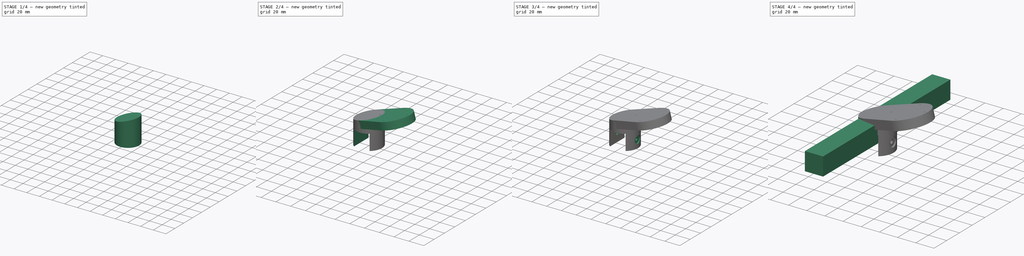
[diagram: build sequence overview — one tinted view per stage of 4, left to right]
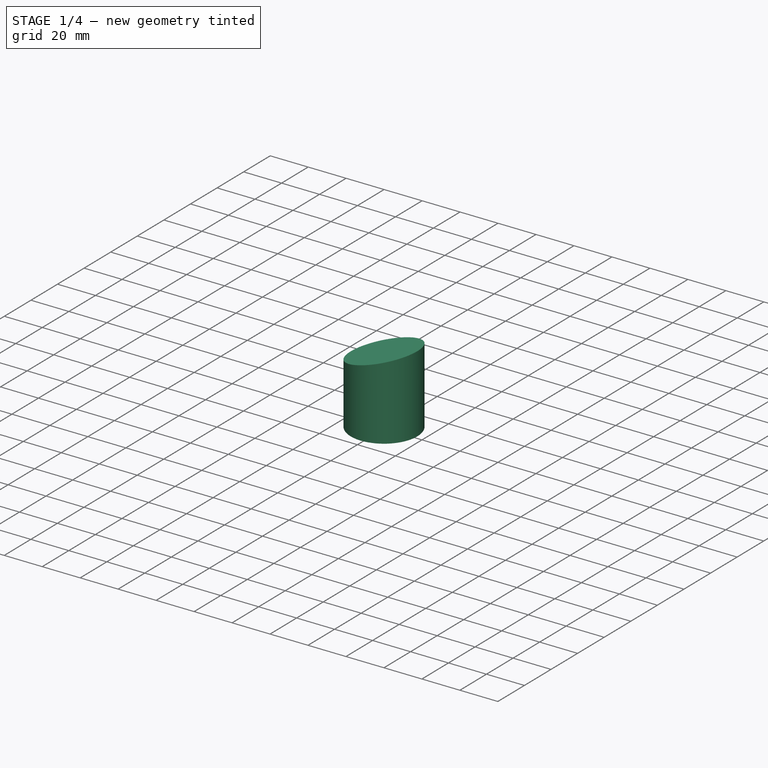
[diagram: stage 1 of 4 — iso view after this stage's code; geometry added in this stage tinted green]
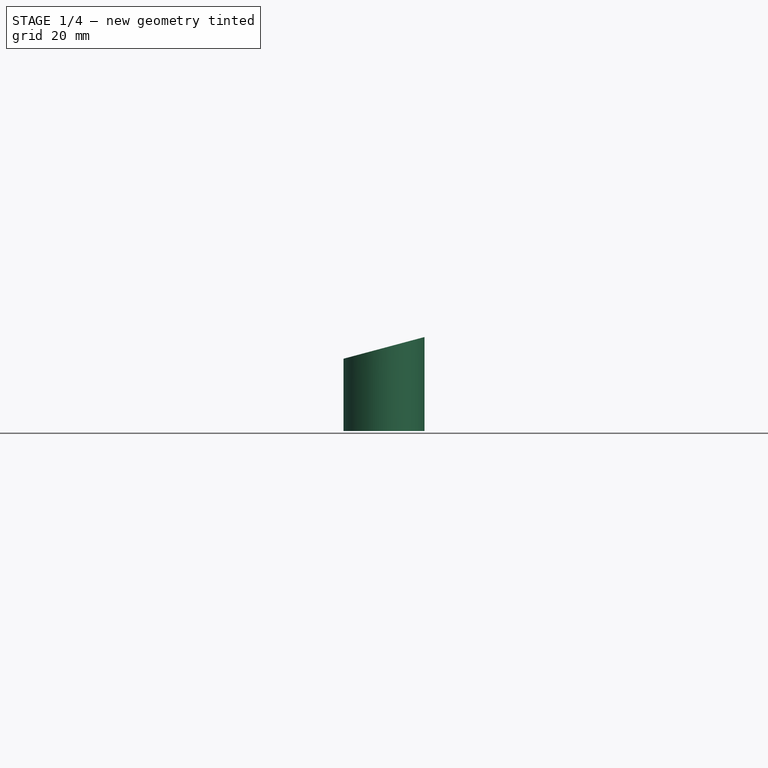
[diagram: stage 1 of 4 — front view after this stage's code; geometry added in this stage tinted green]
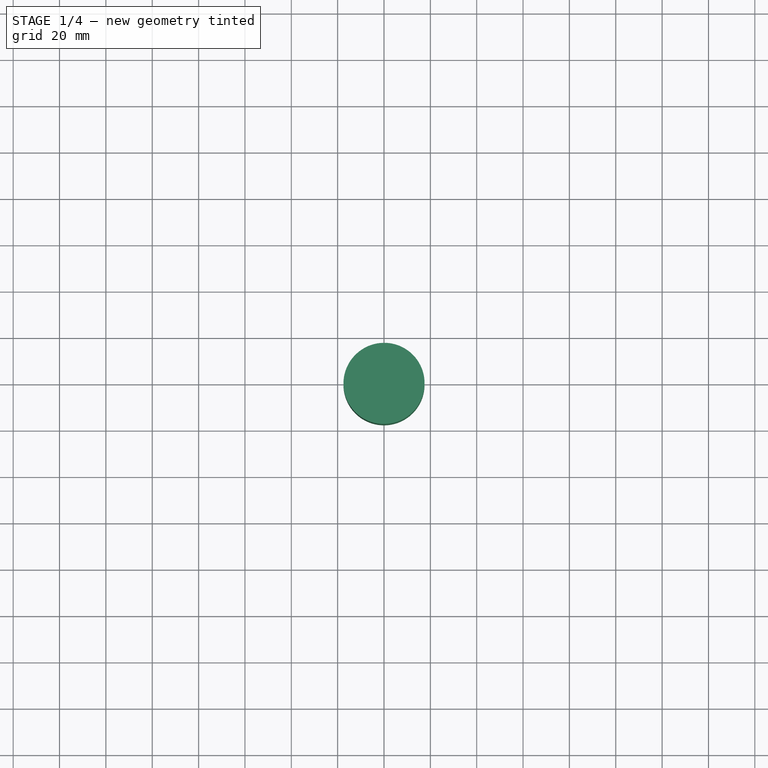
[diagram: stage 1 of 4 — top view after this stage's code; geometry added in this stage tinted green]
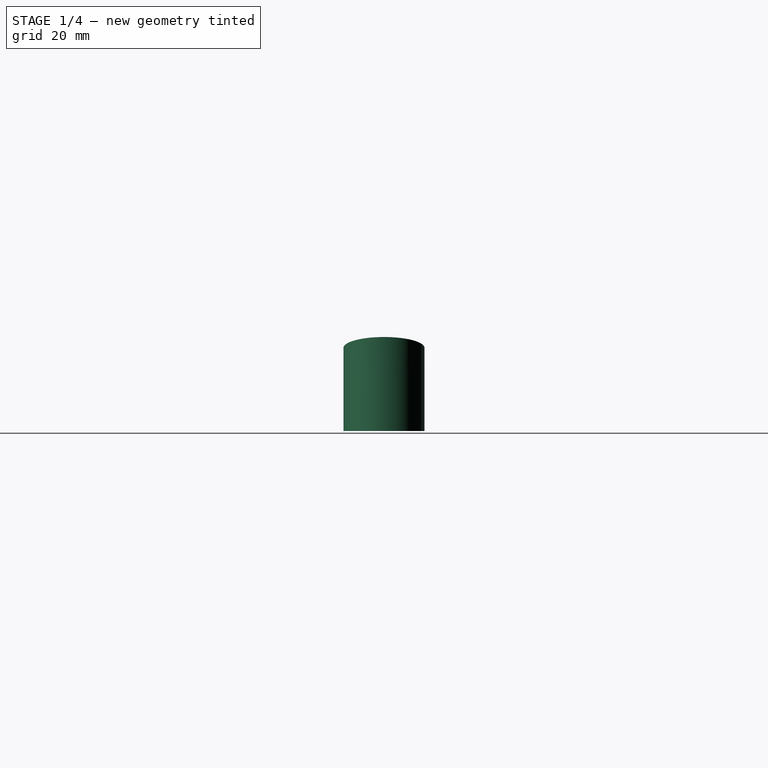
[diagram: stage 1 of 4 — right view after this stage's code; geometry added in this stage tinted green]
FCSTD DOCUMENT  (FreeCAD 0.21R33771 (Git))
Label: keyboard_chair_attachment_rev2
License: All rights reserved
LicenseURL: https://en.wikipedia.org/wiki/All_rights_reserved
objects: Sketcher::SketchObject×10, PartDesign::Plane×10, PartDesign::CoordinateSystem×7, PartDesign::Pocket×6, PartDesign::Pad×4, App::DocumentObjectGroup×3, App::Part×3, PartDesign::Body×2, App::Link×2, App::FeaturePython×1
note: 49 computed .brp shape members not serialized (recipe doc carries the construction recipe); baked Part::Feature solids carry a one-line shape summary decoded from their .brp

FEATURE [PartDesign::Body] Extruded_Bar_Body  label="Extruded Bar Body"
  Group = -> [Sketch,Pad]
  Origin = -> Origin002
  Tip = -> Pad
FEATURE [PartDesign::CoordinateSystem] LCS_003
  AttacherType = Attacher::AttachEngine3D
  MapMode = 2
  Support = -> [X_Axis004]
FEATURE [Sketcher::SketchObject] Sketch005
  FullyConstrained = true
  MapMode = 5
  Placement = pos=(0,0,0) rot=(1,0,0;1.5708rad)
  Support = -> [XZ_Plane004]
  expr: .Constraints.height = Variables.extruded_bar_height + 1
  expr: .Constraints.width = Variables.extruded_bar_width + 1
  sketch-geometry (5):
    g0: LineSegment StartX=-10.5 StartY=-22.5 StartZ=0 EndX=-10.5 EndY=-1.5 EndZ=0
    g1: LineSegment StartX=-10.5 StartY=-1.5 StartZ=0 EndX=10.5 EndY=-1.5 EndZ=0
    g2: LineSegment StartX=10.5 StartY=-1.5 StartZ=0 EndX=10.5 EndY=-22.5 EndZ=0
    g3: LineSegment StartX=10.5 StartY=-22.5 StartZ=0 EndX=-10.5 EndY=-22.5 EndZ=0
    g4: GeomPoint X=0 Y=-12 Z=0
  constraints (13):
    c: Coincident(g0,g1)
    c: Coincident(g1,g2)
    c: Coincident(g2,g3)
    c: Coincident(g3,g0)
    c: Horizontal(g1)
    c: Horizontal(g3)
    c: Vertical(g0)
    c: Vertical(g2)
    c: Symmetric(g1,g0,g4)
    c: PointOnObject(g4,g-2)
    c: DistanceX(g1,g1) = 21  'width'
    c: DistanceY(g2,g2) = 21  'height'
    c: DistanceY(g4,g-1) = 12  'offset'
FEATURE [PartDesign::Plane] DatumPlane004  label="Keyboard Mount Bar Side Right"
  AttachmentOffset = pos=(0,0,10.5) rot=(0,0,1;0rad)
  Length = 60.1645
  MapMode = 5
  Placement = pos=(10.5,-2.3e-15,2.3e-15) rot=(0.57735,0.57735,0.57735;2.0944rad)
  ResizeMode = 0
  Support = -> [YZ_Plane004]
  Width = 61.8232
  expr: .AttachmentOffset.Base.z = Sketch005.Constraints.width / 2
FEATURE [Sketcher::SketchObject] Sketch006
  FullyConstrained = true
  MapMode = 5
  Placement = pos=(10.5,-2.3e-15,2.3e-15) rot=(0.57735,0.57735,0.57735;2.0944rad)
  Support = -> [DatumPlane004]
  expr: .Constraints.offset = Sketch005.Constraints.offset
  sketch-geometry (1):
    g0: Circle CenterX=0 CenterY=-12 CenterZ=0 NormalX=0 NormalY=0 NormalZ=1 AngleXU=0 Radius=2
  constraints (3):
    c: PointOnObject(g0,g-2)
    c: DistanceY(g0,g-1) = 12  'offset'
    c: Diameter(g0) = 4  'hole_diam'
FEATURE [PartDesign::Plane] DatumPlane005  label="Keyboard Mount Bar Mount Screw Head Right"
  AttachmentOffset = pos=(0,0,5) rot=(0,0,1;0rad)
  Length = 60.1645
  MapMode = 5
  Placement = pos=(15.5,-2.9e-15,2.9e-15) rot=(0.57735,0.57735,0.57735;2.0944rad)
  ResizeMode = 0
  Support = -> [DatumPlane004]
  Width = 61.8232
FEATURE [Sketcher::SketchObject] Sketch007
  FullyConstrained = true
  MapMode = 5
  Placement = pos=(15.5,-2.9e-15,2.9e-15) rot=(0.57735,0.57735,0.57735;2.0944rad)
  Support = -> [DatumPlane005]
  expr: .Constraints.offset = Sketch005.Constraints.offset
  sketch-geometry (1):
    g0: Circle CenterX=0 CenterY=-12 CenterZ=0 NormalX=0 NormalY=0 NormalZ=1 AngleXU=0 Radius=5
  constraints (3):
    c: PointOnObject(g0,g-2)
    c: DistanceY(g0,g-1) = 12  'offset'
    c: Diameter(g0) = 10  'hole_diam'
FEATURE [PartDesign::CoordinateSystem] Local_CS  label="Keyboard Mount Body Bar"
  AttacherType = Attacher::AttachEngine3D
  AttachmentOffset = pos=(0,0,-12) rot=(0,0,1;0rad)
  MapMode = 5
  Placement = pos=(0,0,-12) rot=(0,0,1;0rad)
  Support = -> [LCS_003]
  expr: .AttachmentOffset.Base.z = -Sketch005.Constraints.offset
FEATURE [PartDesign::CoordinateSystem] Keyboard_Mount_Bar  label="Keyboard Mount Bar"
  AttacherType = Attacher::AttachEngine3D
  MapMode = 5
  Placement = pos=(0,0,-12) rot=(0,0,1;0rad)
  Support = -> [Local_CS]
FEATURE [PartDesign::CoordinateSystem] LCS_1  label="Extruded Bar Keyboard"
  AttacherType = Attacher::AttachEngine3D
  AttachmentOffset = pos=(0,80,0) rot=(0,0,1;0rad)
  MapMode = 5
  Placement = pos=(0,80,0) rot=(0,0,1;0rad)
  Support = -> [LCS_0]
FEATURE [App::Part] Extruded_Bar  label="Extruded Bar"
  Group = -> [LCS_0,Extruded_Bar_Body,LCS_1]
  Origin = -> Origin001
FEATURE [App::Link] Extruded_Bar_Ass  label="Extruded Bar Ass"
  AttachedBy = #LCS_0
  AttachedTo = Parent Assembly#LCS_Origin
  LinkedObject = -> Extruded_Bar
  SolverId = Asm4EE
  expr: Placement = LCS_Origin.Placement * AttachmentOffset * LCS_0.Placement ^ -1
FEATURE [PartDesign::Plane] DatumPlane006  label="Keyboard Mount Bar Side Left"
  AttachmentOffset = pos=(0,0,-10.5) rot=(0,0,1;0rad)
  Length = 60.1645
  MapMode = 5
  Placement = pos=(-10.5,2.3e-15,-2.3e-15) rot=(0.57735,0.57735,0.57735;2.0944rad)
  ResizeMode = 0
  Support = -> [YZ_Plane004]
  Width = 61.8232
  expr: .AttachmentOffset.Base.z = -Sketch005.Constraints.width / 2
FEATURE [PartDesign::Plane] DatumPlane007  label="Keyboard Mount Bar Mount Screw Head Left"
  AttachmentOffset = pos=(0,0,-5) rot=(0,0,1;0rad)
  Length = 60.1645
  MapMode = 5
  Placement = pos=(-15.5,2.9e-15,-2.9e-15) rot=(0.57735,0.57735,0.57735;2.0944rad)
  ResizeMode = 0
  Support = -> [DatumPlane006]
  Width = 61.8232
FEATURE [Sketcher::SketchObject] Sketch008
  FullyConstrained = true
  MapMode = 5
  Placement = pos=(-10.5,2.3e-15,-2.3e-15) rot=(0.57735,0.57735,0.57735;2.0944rad)
  Support = -> [DatumPlane006]
  expr: Constraints[1] = Sketch006.Constraints.hole_diam
  expr: Constraints[2] = Sketch006.Constraints.offset
  sketch-geometry (1):
    g0: Circle CenterX=0 CenterY=-12 CenterZ=0 NormalX=0 NormalY=0 NormalZ=1 AngleXU=0 Radius=2
  constraints (3):
    c: PointOnObject(g0,g-2)
    c: Diameter(g0) = 4
    c: DistanceY(g0,g-1) = 12
FEATURE [Sketcher::SketchObject] Sketch009
  FullyConstrained = true
  MapMode = 5
  Placement = pos=(-15.5,2.9e-15,-2.9e-15) rot=(0.57735,0.57735,0.57735;2.0944rad)
  Support = -> [DatumPlane007]
  expr: Constraints[1] = Sketch007.Constraints.offset
  expr: Constraints[2] = Sketch007.Constraints.hole_diam
  sketch-geometry (1):
    g0: Circle CenterX=0 CenterY=-12 CenterZ=0 NormalX=0 NormalY=0 NormalZ=1 AngleXU=0 Radius=5
  constraints (3):
    c: PointOnObject(g0,g-2)
    c: DistanceY(g0,g-1) = 12
    c: Diameter(g0) = 10
FEATURE [PartDesign::Plane] DatumPlane010  label="Keyboard Mount Bar Mount Top"
  Length = 94.4443
  MapMode = 5
  ResizeMode = 0
  Support = -> [XY_Plane004]
  Width = 62.78
FEATURE [PartDesign::Plane] DatumPlane011  label="Keyboard Mount Bar Mount Bottom"
  AttachmentOffset = pos=(0,0,-22.5) rot=(0,0,1;0rad)
  Length = 94.4443
  MapMode = 5
  Placement = pos=(0,0,-22.5) rot=(0,0,1;0rad)
  ResizeMode = 0
  Support = -> [DatumPlane010]
  Width = 62.78
  expr: .AttachmentOffset.Base.z = -<<Sketch005>>.Constraints.offset - Sketch005.Constraints.height / 2
FEATURE [Sketcher::SketchObject] Sketch011
  FullyConstrained = true
  MapMode = 5
  Support = -> [DatumPlane010]
  sketch-geometry (1):
    g0: Circle CenterX=0 CenterY=0 CenterZ=0 NormalX=0 NormalY=0 NormalZ=1 AngleXU=0 Radius=17.5
  constraints (2):
    c: Coincident(g0,g-1)
    c: Diameter(g0) = 35  'diam'
FEATURE [App::Link] Keyboard_Mount_Ass  label="Keyboard Mount Ass"
  AttachedBy = #Keyboard_Mount_Bar
  AttachedTo = Extruded_Bar_Ass#LCS_1
  LinkPlacement = pos=(0,80,12) rot=(0,0,1;0rad)
  LinkedObject = -> Keyboard_Mount
  Placement = pos=(0,80,12) rot=(0,0,1;0rad)
  SolverId = Asm4EE
  expr: Placement = Extruded_Bar_Ass.Placement * LCS_1.Placement * AttachmentOffset * Keyboard_Mount_Bar.Placement ^ -1
FEATURE [App::Part] Assembly
  AssemblyType = Part::Link
  Group = -> [LCS_Origin,Constraints,Variables,Configurations,Extruded_Bar_Ass,Keyboard_Mount_Ass]
  Origin = -> Origin
  Type = Assembly
FEATURE [PartDesign::CoordinateSystem] Local_CS001  label="Keyboard Mount Edge Position"
  AttacherType = Attacher::AttachEngine3D
  AttachmentOffset = pos=(-20,0,8) rot=(0,0,1;0rad)
  MapMode = 5
  Placement = pos=(-20,0,8) rot=(0,0,1;0rad)
  Support = -> [XY_Plane004]
FEATURE [PartDesign::Plane] DatumPlane  label="Keyboard Mount Tenting Puck Support Top Angle"
  AttachmentOffset = pos=(0,0,0) rot=(0,-1,0;0.261799rad)
  Length = 105.835
  MapMode = 5
  Placement = pos=(-20,0,8) rot=(0,-1,0;0.261799rad)
  ResizeMode = 0
  Support = -> [Local_CS001]
  Width = 63.5832
FEATURE [PartDesign::Plane] DatumPlane012  label="Keyboard Mount Tenting Puck Support Top"
  AttachmentOffset = pos=(55,0,0) rot=(0,0,1;0rad)
  Length = 105.835
  MapMode = 5
  Placement = pos=(33.1259,0,22.235) rot=(0,-1,0;0.261799rad)
  ResizeMode = 0
  Support = -> [DatumPlane]
  Width = 63.5832
FEATURE [Sketcher::SketchObject] Sketch012
  FullyConstrained = true
  MapMode = 5
  Placement = pos=(33.1259,0,22.235) rot=(0,-1,0;0.261799rad)
  Support = -> [DatumPlane012]
  sketch-geometry (5):
    g0: Circle CenterX=0 CenterY=0 CenterZ=0 NormalX=0 NormalY=0 NormalZ=1 AngleXU=0 Radius=19
    g1: Circle CenterX=0 CenterY=19 CenterZ=0 NormalX=0 NormalY=0 NormalZ=1 AngleXU=0 Radius=0.85
    g2: Circle CenterX=-19 CenterY=0 CenterZ=0 NormalX=0 NormalY=0 NormalZ=1 AngleXU=0 Radius=0.85
    g3: Circle CenterX=19 CenterY=0 CenterZ=0 NormalX=0 NormalY=0 NormalZ=1 AngleXU=0 Radius=0.85
    g4: Circle CenterX=0 CenterY=-19 CenterZ=0 NormalX=0 NormalY=0 NormalZ=1 AngleXU=0 Radius=0.85
  constraints (14):
    c: Coincident(g0,g-1)
    c: PointOnObject(g1,g0)
    c: PointOnObject(g2,g0)
    c: PointOnObject(g3,g0)
    c: PointOnObject(g4,g0)
    c: PointOnObject(g4,g-2)
    c: Tangent(g1,g-2) = -1.5708
    c: PointOnObject(g2,g-1)
    c: PointOnObject(g3,g-1)
    c: Equal(g1,g2)
    c: Equal(g2,g3)
    c: Equal(g3,g4)
    c: Diameter(g1) = 1.7
    c: Diameter(g0) = 38  'hole_centres'
FEATURE [PartDesign::Plane] DatumPlane013  label="Keyboard Mount Tenting Puck Support Bottom"
  AttachmentOffset = pos=(0,0,-10) rot=(0,0,1;0rad)
  Length = 105.835
  MapMode = 5
  Placement = pos=(35.7141,0,12.5758) rot=(0,-1,0;0.261799rad)
  ResizeMode = 0
  Support = -> [DatumPlane012]
  Width = 63.5832
FEATURE [Sketcher::SketchObject] Sketch013
  FullyConstrained = true
  MapMode = 5
  Support = -> [DatumPlane010]
  expr: Constraints[1] = Sketch011.Constraints.diam
  sketch-geometry (1):
    g0: Circle CenterX=0 CenterY=0 CenterZ=0 NormalX=0 NormalY=0 NormalZ=1 AngleXU=0 Radius=17.5
  constraints (2):
    c: Coincident(g0,g-1)
    c: Diameter(g0) = 35
FEATURE [PartDesign::Pad] Pad003  label="Keyboard Mount Bar Padding"
  Direction = (0,0,1)
  Length = 10
  Length2 = 10
  Profile = -> Sketch013
  ReferenceAxis = -> Sketch013 [N_Axis]
  Type = 3
  UpToFace = -> DatumPlane012 [Plane]
FEATURE [PartDesign::Pad] Pad002  label="Keyboard Mount Bar Mount"
  BaseFeature = -> Pad003
  Direction = (0,0,1)
  Length = 10
  Length2 = 10
  Profile = -> Sketch011
  ReferenceAxis = -> Sketch011 [N_Axis]
  Type = 3
  UpToFace = -> DatumPlane011 [Plane]
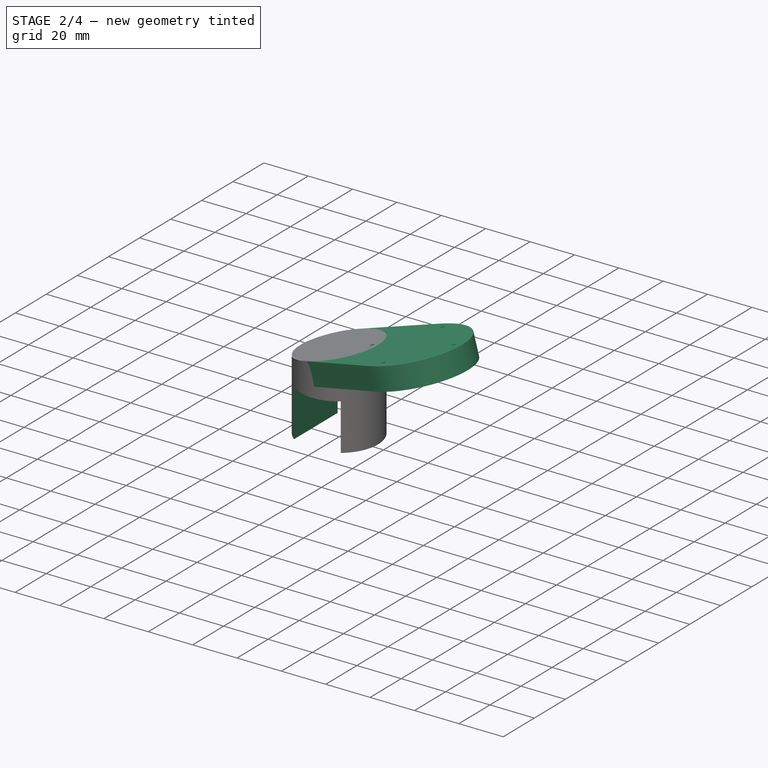
[diagram: stage 2 of 4 — iso view after this stage's code; geometry added in this stage tinted green]
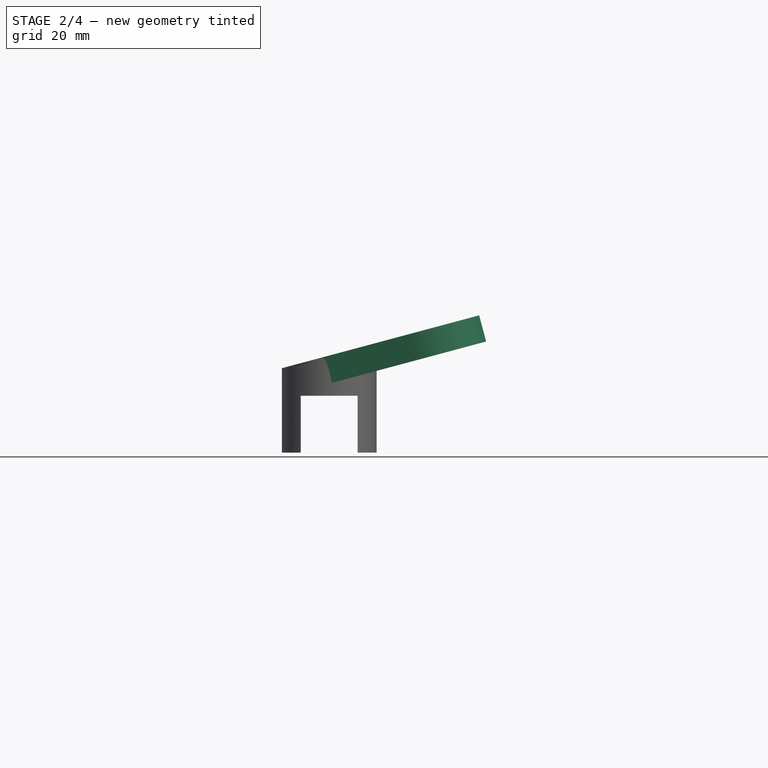
[diagram: stage 2 of 4 — front view after this stage's code; geometry added in this stage tinted green]
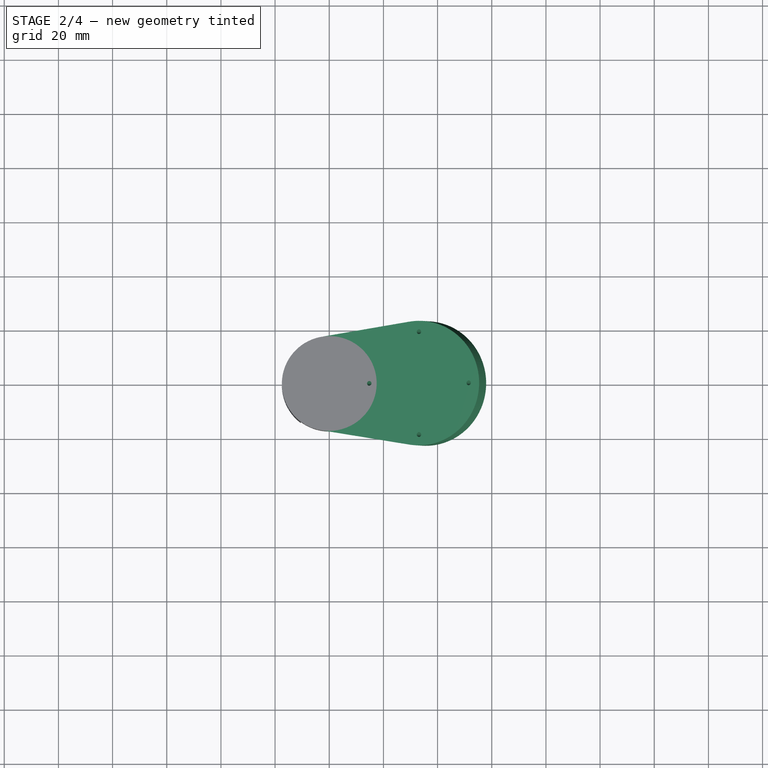
[diagram: stage 2 of 4 — top view after this stage's code; geometry added in this stage tinted green]
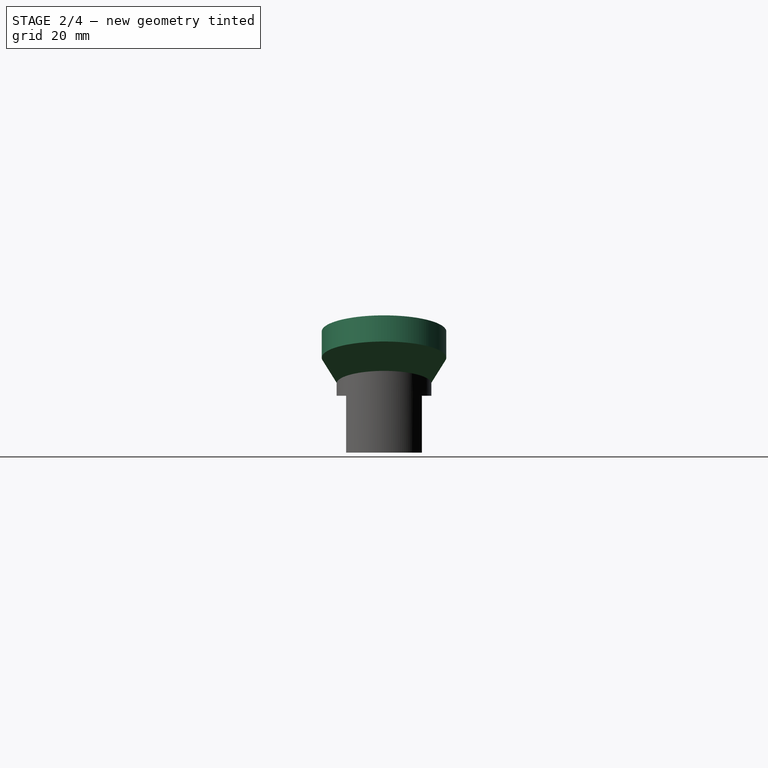
[diagram: stage 2 of 4 — right view after this stage's code; geometry added in this stage tinted green]
FEATURE [Sketcher::SketchObject] Sketch014
  ExternalGeometry = -> [Pad002]
  FullyConstrained = true
  MapMode = 5
  Placement = pos=(33.1259,0,22.235) rot=(0,-1,0;0.261799rad)
  Support = -> [DatumPlane012]
  sketch-geometry (6):
    g0: GeomPoint X=-52.4118 Y=0 Z=0
    g1: Circle CenterX=0 CenterY=0 CenterZ=0 NormalX=0 NormalY=0 NormalZ=1 AngleXU=0 Radius=23
    g2: LineSegment StartX=-37.291 StartY=17.259 StartZ=0 EndX=-3.67787 EndY=22.704 EndZ=0
    g3: LineSegment StartX=-37.291 StartY=-17.259 StartZ=0 EndX=-3.67787 EndY=-22.704 EndZ=0
    g4: ArcOfCircle CenterX=1.8e-15 CenterY=1e-15 CenterZ=0 NormalX=0 NormalY=0 NormalZ=1 AngleXU=0 Radius=23 StartAngle=4.55179 EndAngle=8.01458
    g5: ArcOfCircle CenterX=-35.0017 CenterY=3.2e-15 CenterZ=0 NormalX=0 NormalY=0 NormalZ=1 AngleXU=0 Radius=17.4102 StartAngle=1.70267 EndAngle=4.58051
  constraints (14):
    c: Coincident(g1,g-1)
    c: Diameter(g1) = 46  'diam'
    c: Coincident(g4,g2)
    c: Coincident(g4,g3)
    c: Tangent(g4,g1)
    c: Coincident(g5,g2)
    c: Coincident(g5,g3)
    c: PointOnObject(g0,g5)
    c: Tangent(g2,g1) = 1.5708
    c: Tangent(g3,g1) = -1.5708
    c: PointOnObject(g0,g-1)
    c: Tangent(g2,g-3) = 1.5708
    c: Tangent(g3,g-3) = -1.5708
    c: PointOnObject(g0,g-3)
FEATURE [PartDesign::Pad] Pad004  label="Keyboard Mount Tenting Puck Support"
  BaseFeature = -> Pad002
  Direction = (-0.258819,0,0.965926)
  Length = 10
  Length2 = 10
  Profile = -> Sketch014
  ReferenceAxis = -> Sketch014 [N_Axis]
  Type = 3
  UpToFace = -> DatumPlane013
FEATURE [PartDesign::Plane] DatumPlane014  label="Keyboard Mount Tenting Puck Hole Depth"
  AttachmentOffset = pos=(0,0,-8) rot=(0,0,1;0rad)
  Length = 105.835
  MapMode = 5
  Placement = pos=(35.1965,0,14.5076) rot=(0,-1,0;0.261799rad)
  ResizeMode = 0
  Support = -> [DatumPlane012]
  Width = 63.5832
FEATURE [PartDesign::Pocket] Pocket  label="Keyboard Mount Tenting Puck Holes"
  BaseFeature = -> Pad004
  Direction = (0.258819,0,-0.965926)
  Length = 0
  Length2 = 5
  Profile = -> Sketch012
  ReferenceAxis = -> Sketch012 [N_Axis]
  Type = 3
  UpToFace = -> DatumPlane014 [Plane]
FEATURE [PartDesign::Pocket] Pocket001  label="Keyboard Mount Bar Cutout"
  BaseFeature = -> Pocket
  Direction = (0,1,2e-16)
  Length = 5
  Length2 = 5
  Midplane = true
  Profile = -> Sketch005
  ReferenceAxis = -> Sketch005 [N_Axis]
  Type = 1
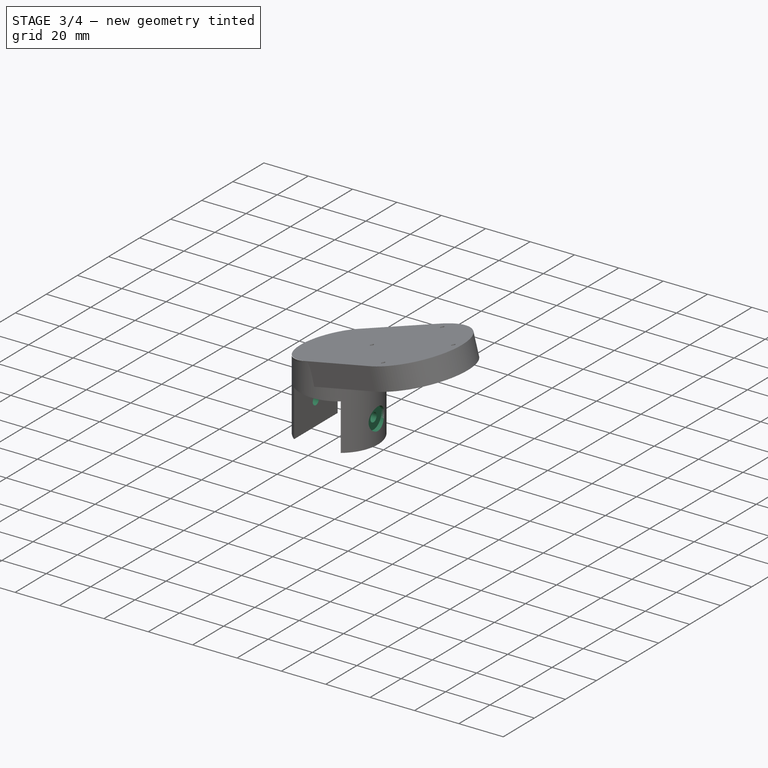
[diagram: stage 3 of 4 — iso view after this stage's code; geometry added in this stage tinted green]
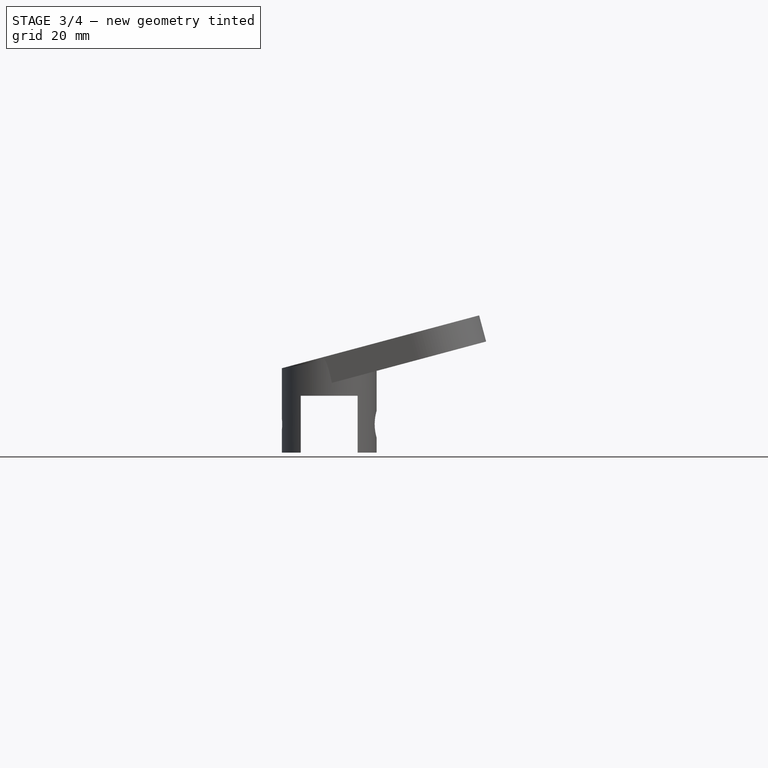
[diagram: stage 3 of 4 — front view after this stage's code; geometry added in this stage tinted green]
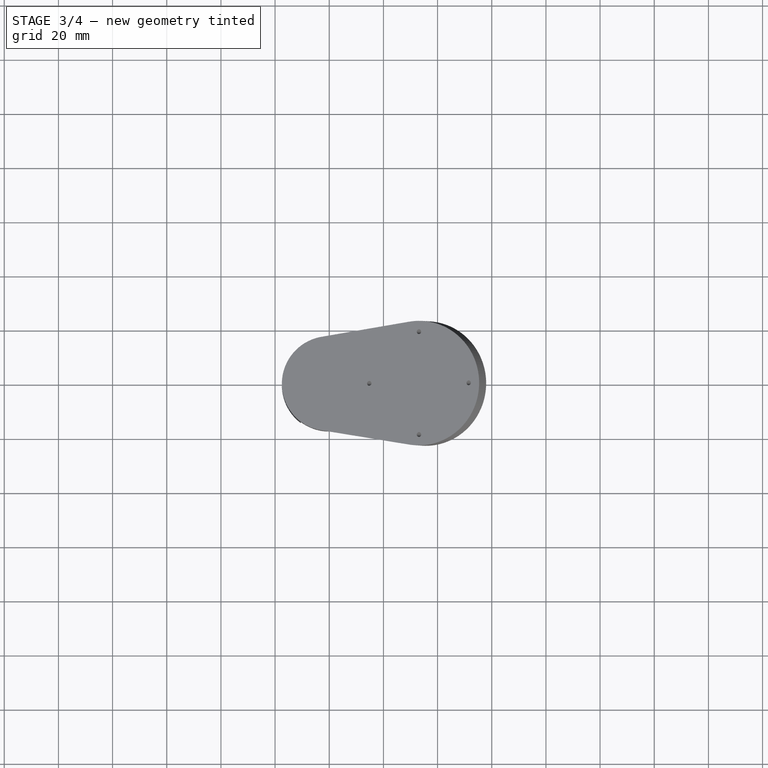
[diagram: stage 3 of 4 — top view after this stage's code; geometry added in this stage tinted green]
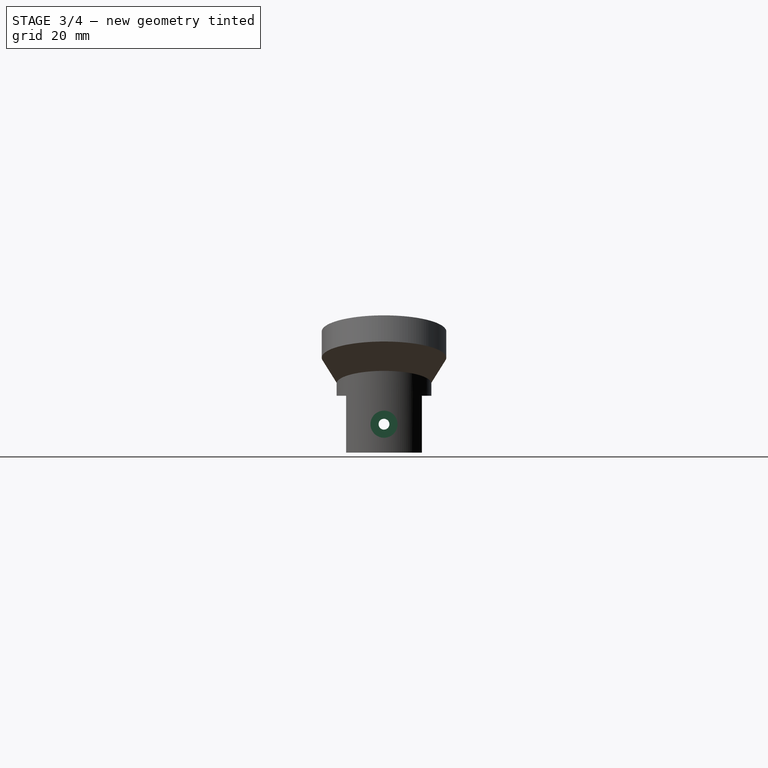
[diagram: stage 3 of 4 — right view after this stage's code; geometry added in this stage tinted green]
FEATURE [PartDesign::Pocket] Pocket002  label="Keyboard Mount Bar Screw Cutout Right"
  BaseFeature = -> Pocket001
  Direction = (-1,1e-16,-1e-16)
  Length = 5
  Length2 = 5
  Profile = -> Sketch006
  ReferenceAxis = -> Sketch006 [N_Axis]
  Reversed = true
  Type = 1
FEATURE [PartDesign::Pocket] Pocket003  label="Keyboard Mount Bar Screw Head Cutout Right"
  BaseFeature = -> Pocket002
  Direction = (-1,0,0)
  Length = 5
  Length2 = 5
  Profile = -> Sketch007
  ReferenceAxis = -> Sketch007 [N_Axis]
  Reversed = true
  Type = 1
FEATURE [PartDesign::Pocket] Pocket004  label="Keyboard Mount Bar Screw Cutout Left"
  BaseFeature = -> Pocket003
  Direction = (-1,1e-16,-1e-16)
  Length = 5
  Length2 = 5
  Profile = -> Sketch008
  ReferenceAxis = -> Sketch008 [N_Axis]
  Type = 1
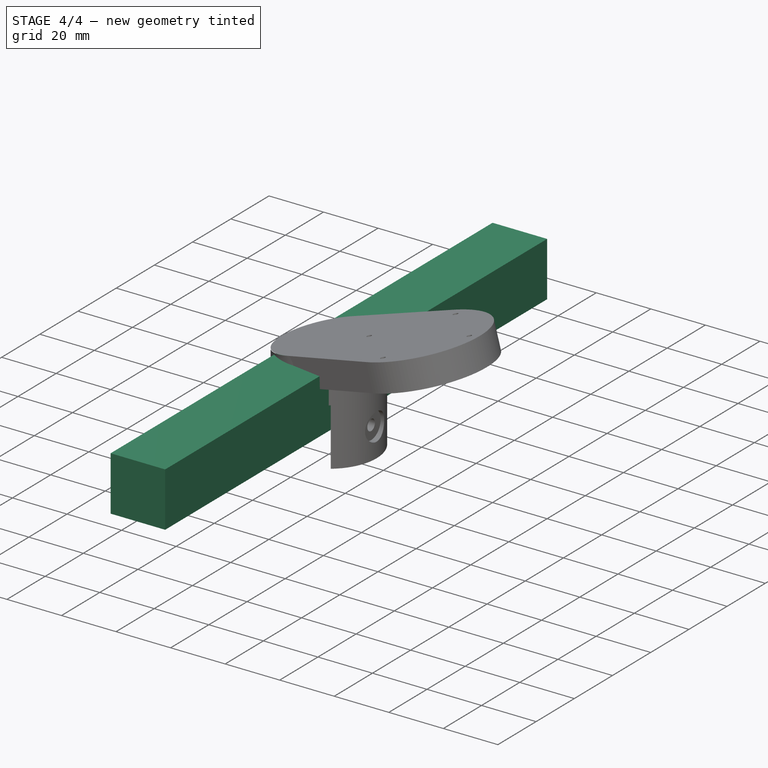
[diagram: stage 4 of 4 — iso view after this stage's code; geometry added in this stage tinted green]
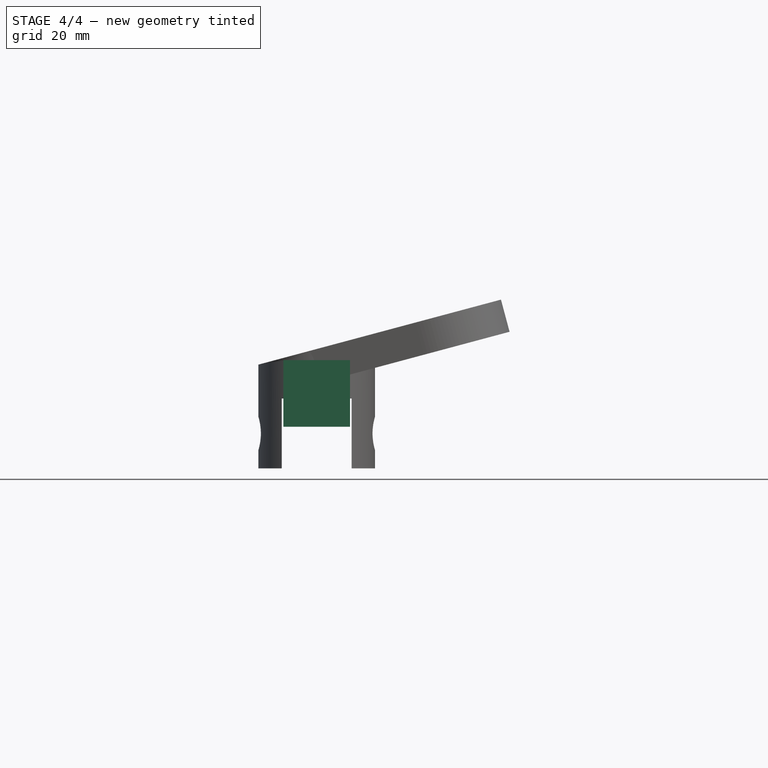
[diagram: stage 4 of 4 — front view after this stage's code; geometry added in this stage tinted green]
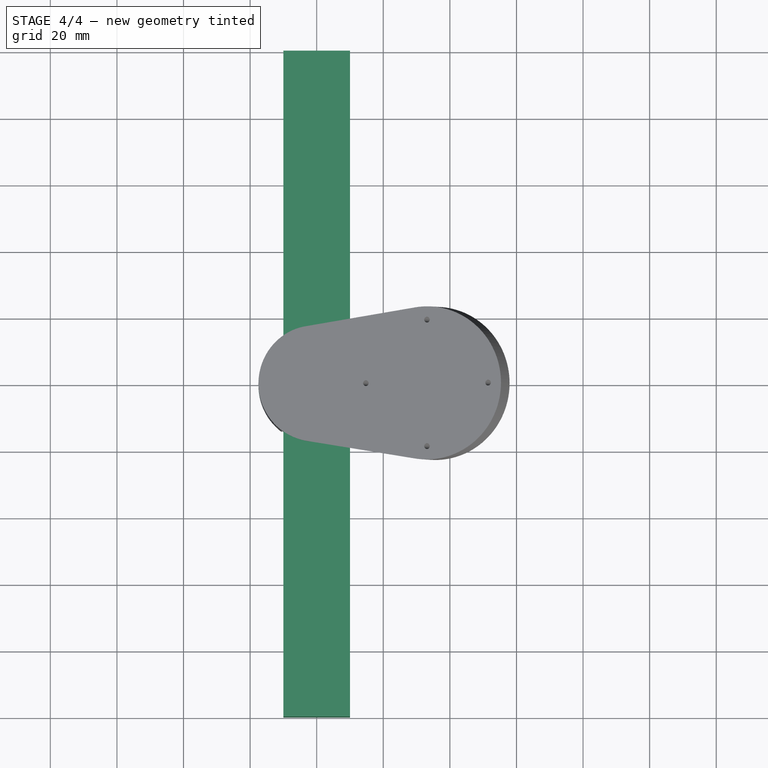
[diagram: stage 4 of 4 — top view after this stage's code; geometry added in this stage tinted green]
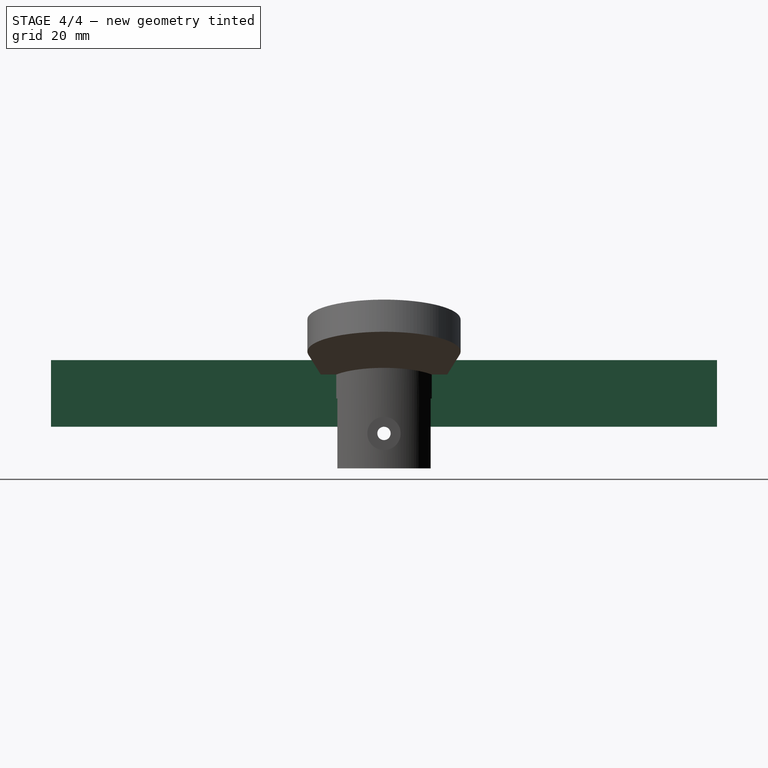
[diagram: stage 4 of 4 — right view after this stage's code; geometry added in this stage tinted green]
FEATURE [PartDesign::CoordinateSystem] LCS_Origin
  AttacherType = Attacher::AttachEngine3D
  MapMode = 2
  Support = -> [X_Axis]
FEATURE [App::DocumentObjectGroup] Constraints
FEATURE [App::FeaturePython] Variables  # WARN: FeaturePython — macro-defined, semantics opaque (R4)
  Type = App::PropertyContainer
  extruded_bar_height = 20
  extruded_bar_length = 200
  extruded_bar_width = 20
FEATURE [App::DocumentObjectGroup] Configurations
FEATURE [PartDesign::CoordinateSystem] LCS_0  label="Extruded Bar Centre"
  AttacherType = Attacher::AttachEngine3D
  MapMode = 2
  Support = -> [X_Axis001]
FEATURE [Sketcher::SketchObject] Sketch  label="Extruded Bar Extrusion"
  FullyConstrained = true
  MapMode = 5
  Placement = pos=(0,0,0) rot=(1,0,0;1.5708rad)
  Support = -> [XZ_Plane002]
  expr: Constraints[10] = Variables.extruded_bar_height
  expr: Constraints[11] = Variables.extruded_bar_width
  sketch-geometry (5):
    g0: LineSegment StartX=-10 StartY=-10 StartZ=0 EndX=-10 EndY=10 EndZ=0
    g1: LineSegment StartX=-10 StartY=10 StartZ=0 EndX=10 EndY=10 EndZ=0
    g2: LineSegment StartX=10 StartY=10 StartZ=0 EndX=10 EndY=-10 EndZ=0
    g3: LineSegment StartX=10 StartY=-10 StartZ=0 EndX=-10 EndY=-10 EndZ=0
    g4: GeomPoint X=0 Y=0 Z=0
  constraints (12):
    c: Coincident(g0,g1)
    c: Coincident(g1,g2)
    c: Coincident(g2,g3)
    c: Coincident(g3,g0)
    c: Horizontal(g1)
    c: Horizontal(g3)
    c: Vertical(g0)
    c: Vertical(g2)
    c: Symmetric(g1,g0,g4)
    c: Coincident(g4,g-1)
    c: DistanceY(g2,g2) = 20
    c: DistanceX(g1,g1) = 20
FEATURE [PartDesign::Pad] Pad  label="Extruded Bar Outer"
  Direction = (0,-1,2e-16)
  Length = 200
  Length2 = 10
  Midplane = true
  Placement = pos=(0,0,0) rot=(1,0,0;1.5708rad)
  Profile = -> Sketch
  ReferenceAxis = -> Sketch [N_Axis]
  Type = 0
  expr: Length = Variables.extruded_bar_length
FEATURE [PartDesign::Pocket] Pocket005  label="Keyboard Mount Bar Screw Head Cutout Left"
  BaseFeature = -> Pocket004
  Direction = (-1,0,0)
  Length = 0
  Length2 = 5
  Profile = -> Sketch009
  ReferenceAxis = -> Sketch009 [N_Axis]
  Type = 1
FEATURE [PartDesign::Body] Keyboard_Mount_Body  label="Keyboard Mount Body"
  Group = -> [LCS_003,DatumPlane010,Pad003,DatumPlane011,Pad002,Local_CS001,DatumPlane,DatumPlane012,DatumPlane014,DatumPlane013,Pad004,Pocket,Sketch012,Sketch005,Pocket001,DatumPlane004,Sketch006,Pocket002,DatumPlane005,Sketch007,Pocket003,Local_CS,DatumPlane006,Sketch008,Pocket004,DatumPlane007,Sketch009,Pocket005,Sketch011,Sketch013,Sketch014]
  Origin = -> Origin004
  Tip = -> Pocket005
FEATURE [App::Part] Keyboard_Mount  label="Keyboard Mount"
  Group = -> [Keyboard_Mount_Body,Keyboard_Mount_Bar]
  Origin = -> Origin003
FEATURE [App::DocumentObjectGroup] Parts
  Group = -> [Extruded_Bar,Keyboard_Mount]
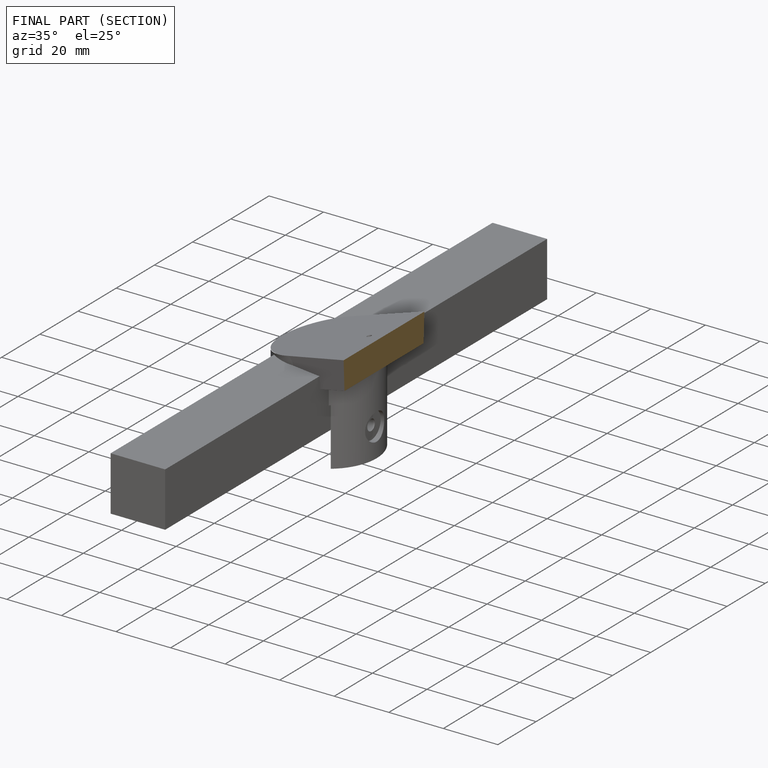
[diagram: finished part — half-section view (interior)]
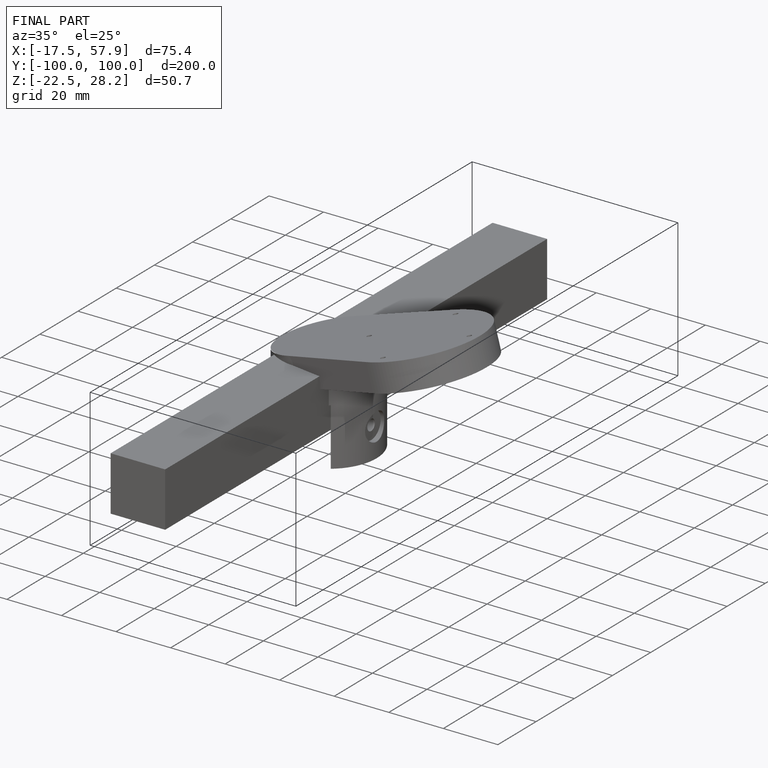
[diagram: finished part — iso view with bounding-box wireframe]
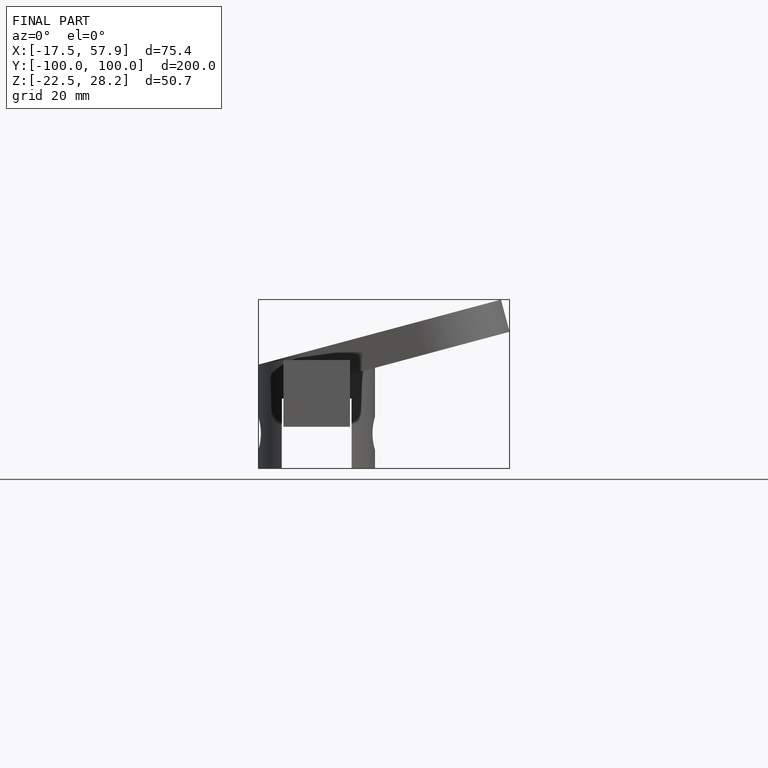
[diagram: finished part — front view with bounding-box wireframe]
